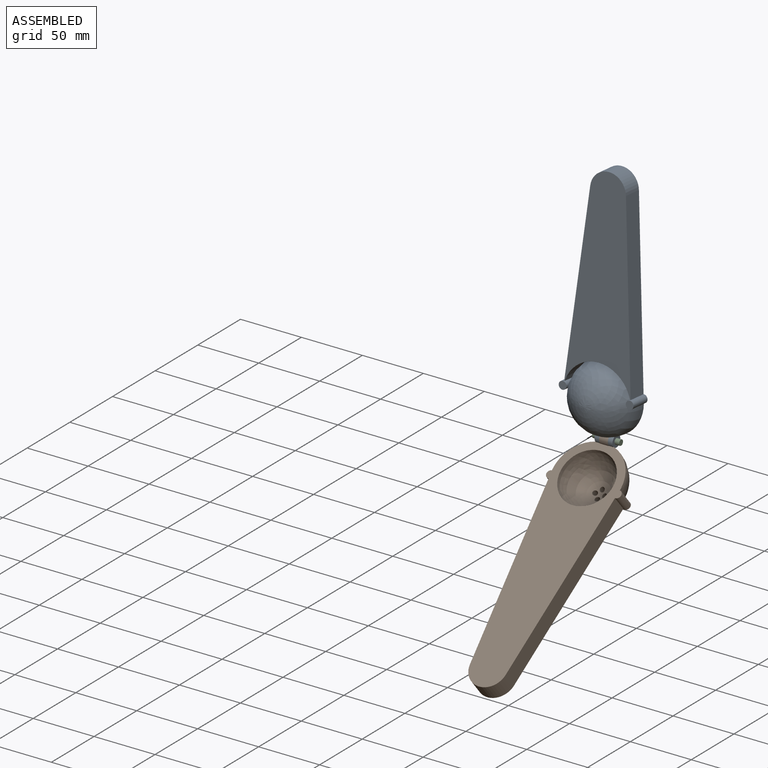
[diagram: assembled view]
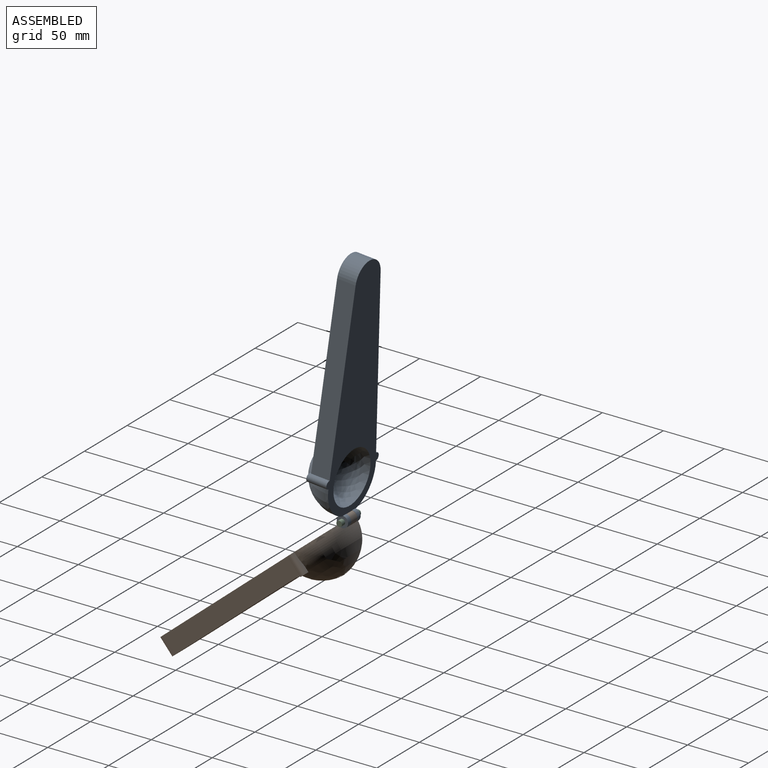
[diagram: assembled view, second angle]
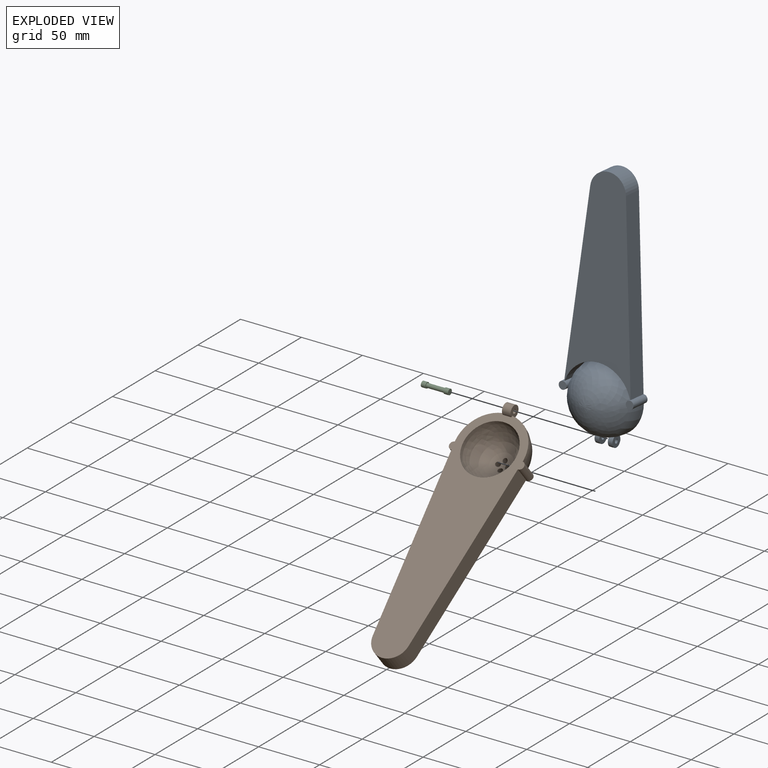
[diagram: exploded view]
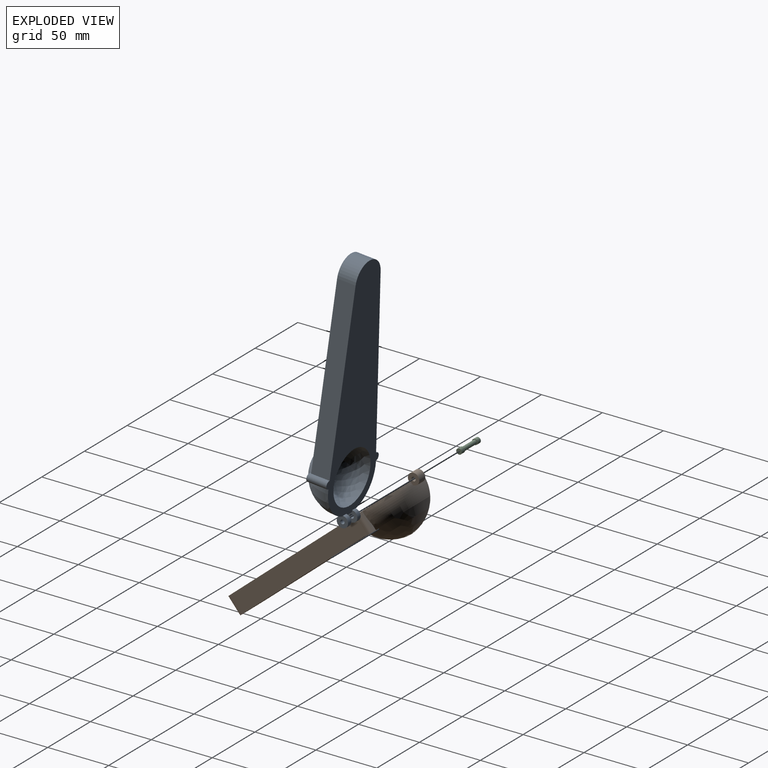
[diagram: exploded view, second angle]
ASSEMBLY  parts=3 mates=2
PART A: 20 faces, bbox 61.4x201x35.1 mm
  f0: plane 193.19x61.38mm, normal (0,0,1), area 6556.2mm2, adj f1,f2,f4,f5,f6,f8,f10,f11
  f1: revolved ~55.78x55.78mm, area 4868.6mm2, adj f0,f3,f8,f10,f11,f12,f13,f15
  f2: revolved ~43.18x43.18mm, area 3057.7mm2, adj f0
  f3: cylinder r=27.94mm len=53.58mm, axis (0,0,1), area 932mm2, adj f1,f7,f16,f18
  f4: plane 143.81x15.24mm, normal (-1,-0.09,0), area 2200mm2, adj f0,f5,f7,f16
  f5: cylinder r=14.71mm len=29.32mm, axis (0,0,1), area 665.3mm2, adj f0,f4,f6,f7
  f6: plane 143.81x15.24mm, normal (1,-0.09,0), area 2200mm2, adj f0,f5,f7,f18
  f7: plane 157.31x54.48mm, normal (0,0,-1), area 5542.7mm2, adj f3,f4,f5,f6,f16,f18
  f8: plane 9.31x9.31mm, normal (-1,0,0), area 56.4mm2, adj f0,f1,f9,f11
  f9: cylinder r=1.69mm len=3.81mm, axis (-1,0,0), area 40.5mm2, adj f8,f10
  f10: plane 9.31x9.31mm, normal (1,0,0), area 58.4mm2, adj f0,f1,f9,f11
  f11: cylinder r=4.66mm len=9.31mm, axis (-1,0,0), area 100.3mm2, adj f0,f1,f8,f10
  f12: cylinder r=4.66mm len=9.31mm, axis (-1,0,0), area 100.3mm2, adj f0,f1,f13,f15
  f13: plane 9.31x9.31mm, normal (-1,0,0), area 58.4mm2, adj f0,f1,f12,f14
  f14: cylinder r=1.69mm len=3.81mm, axis (-1,0,0), area 40.5mm2, adj f13,f15
  f15: plane 9.31x9.31mm, normal (1,0,0), area 56.4mm2, adj f0,f1,f12,f14
  f16: cylinder r=3.17mm len=16.51mm, axis (0,0,1), area 213.3mm2, adj f0,f1,f3,f4,f7,f17
  f17: plane 6.35x6.35mm, normal (0,0,-1), area 31.7mm2, adj f16
  f18: cylinder r=3.17mm len=16.51mm, axis (0,0,1), area 213.3mm2, adj f0,f1,f3,f6,f7,f19
  f19: plane 6.35x6.35mm, normal (0,0,-1), area 31.7mm2, adj f18
PART B: 20 faces, bbox 61.4x201x35 mm
  f0: plane 192.97x61.38mm, normal (0,0,1), area 6553.3mm2, adj f1,f2,f4,f5,f6,f8,f9,f11
  f1: revolved ~55.92x55.92mm, area 4808.4mm2, adj f0,f3,f8,f9,f11,f12,f14,f16
  f2: revolved ~43.18x43.18mm, area 2998.5mm2, adj f0,f16,f17,f18,f19
  f3: cylinder r=27.94mm len=53.58mm, axis (0,0,1), area 932mm2, adj f1,f7,f12,f14
  f4: plane 143.81x15.24mm, normal (-1,-0.09,0), area 2200mm2, adj f0,f5,f7,f12
  f5: cylinder r=14.71mm len=29.32mm, axis (0,0,1), area 665.3mm2, adj f0,f4,f6,f7
  f6: plane 143.81x15.24mm, normal (1,-0.09,0), area 2200mm2, adj f0,f5,f7,f14
  f7: plane 157.31x54.48mm, normal (0,0,-1), area 5542.7mm2, adj f3,f4,f5,f6,f12,f14
  f8: cylinder r=4.66mm len=9.31mm, axis (-1,0,0), area 181.5mm2, adj f0,f1,f9,f11
  f9: plane 9.31x9.31mm, normal (-1,0,0), area 56.4mm2, adj f0,f1,f8,f10
  f10: cylinder r=1.69mm len=7.08mm, axis (-1,0,0), area 75.4mm2, adj f9,f11
  f11: plane 9.31x9.31mm, normal (1,0,0), area 56.4mm2, adj f0,f1,f8,f10
  f12: cylinder r=3.17mm len=16.51mm, axis (0,0,1), area 213.3mm2, adj f0,f1,f3,f4,f7,f13
  f13: plane 6.35x6.35mm, normal (0,0,-1), area 31.7mm2, adj f12
  f14: cylinder r=3.17mm len=16.51mm, axis (0,0,1), area 213.3mm2, adj f0,f1,f3,f6,f7,f15
  f15: plane 6.35x6.35mm, normal (0,0,-1), area 31.7mm2, adj f14
  f16: cylinder r=1.91mm len=7.62mm, axis (0,0,1), area 80.6mm2, adj f1,f2
  f17: cylinder r=1.91mm len=7.62mm, axis (0,0,1), area 80.6mm2, adj f1,f2
  f18: cylinder r=1.91mm len=7.62mm, axis (0,0,1), area 80.7mm2, adj f1,f2
  f19: cylinder r=1.91mm len=7.62mm, axis (0,0,1), area 80.6mm2, adj f1,f2
PART C: 7 faces, bbox 4.6x4.6x22.3 mm
  f0: cylinder r=1.7mm len=14.71mm, axis (0,0,-1), area 157.3mm2, adj f3,f6
  f1: cylinder r=2.29mm len=4.57mm, axis (0,0,1), area 54.7mm2, adj f2,f3
  f2: plane 4.57x4.57mm, normal (0,0,-1), area 16.4mm2, adj f1
  f3: plane 4.57x4.57mm, normal (0,0,1), area 7.3mm2, adj f0,f1
  f4: cylinder r=2.29mm len=4.57mm, axis (0,0,-1), area 54.7mm2, adj f5,f6
  f5: plane 4.57x4.57mm, normal (0,0,1), area 16.4mm2, adj f4
  f6: plane 4.57x4.57mm, normal (0,0,-1), area 7.3mm2, adj f0,f4
PLACE A rot(axis=(-1,0,0),95deg) t=(-12.19,-63.86,-7.93)mm
PLACE B rot(axis=(1,0,0),40deg) t=(-12.19,-90.52,-59.1)mm fixed
PLACE C rot(axis=(-0.04,1,-0.04),90.1deg) t=(-19.54,-66.57,-38.93)mm
MATE fastened C.f0 <-> A.f9  axis (1,0,0) through (-19.54,-66.57,-38.93)mm
MATE revolute A.f9 <-> B.f9  axis (-1,0,0) through (-15.73,-66.57,-38.93)mm
